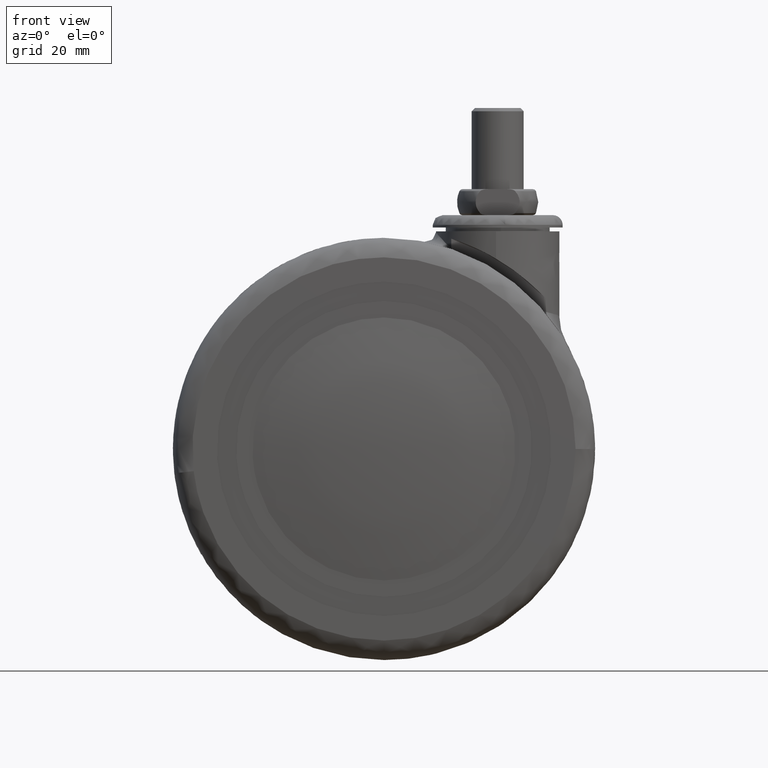
[diagram: clean part render]
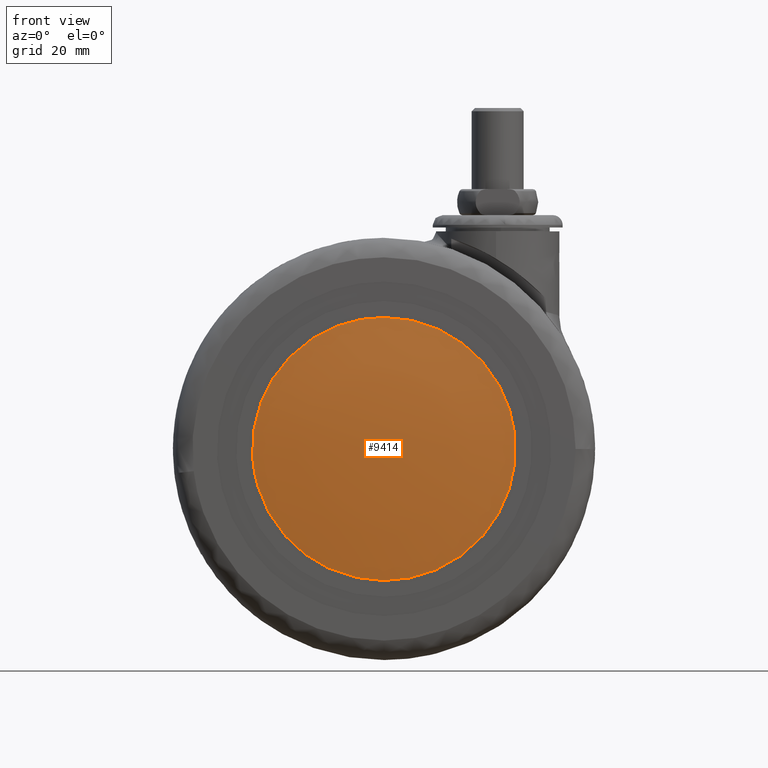
[diagram: same view with one face highlighted and labeled with its STEP entity id]
A machine part, front view. The second image highlights one B-rep face of the part: STEP entity #9414.
In plain terms, the highlighted face is a freeform B-spline surface patch.
Its self-contained STEP definition (entity closure, byte-faithful):
#7477=CARTESIAN_POINT('',(40.216882801902663,-31.800000000000001,4.780385587166419));
#7478=VERTEX_POINT('',#7477);
#7484=CARTESIAN_POINT('',(0.0,-31.800000000000001,-40.499996897085850));
#7485=VERTEX_POINT('',#7484);
#7486=CARTESIAN_POINT('',(40.216882801902663,-31.800000000000001,4.780385587166419));
#7487=CARTESIAN_POINT('',(40.499996897085857,-31.800000000000004,2.398576106136345));
#7488=CARTESIAN_POINT('',(40.499996897085850,-31.800000000000001,0.0));
#7489=CARTESIAN_POINT('',(40.499996897085850,-31.799999999999997,-40.499996897085850));
#7490=CARTESIAN_POINT('',(0.0,-31.800000000000001,-40.499996897085850));
#7498=(BOUNDED_CURVE()B_SPLINE_CURVE(2,(#7486,#7487,#7488,#7489,#7490),.UNSPECIFIED.,.F.,.U.)B_SPLINE_CURVE_WITH_KNOTS((3,2,3),(0.229562478139701,0.250000000000000,0.500000000000000),.UNSPECIFIED.)CURVE()GEOMETRIC_REPRESENTATION_ITEM()RATIONAL_B_SPLINE_CURVE((0.956026763251227,0.976055953751067,1.0,0.707106781186548,1.0))REPRESENTATION_ITEM(''));
#7499=EDGE_CURVE('',#7478,#7485,#7498,.T.);
#7501=CARTESIAN_POINT('',(-40.424458295922619,-31.800000000000001,-2.472432030216507));
#7502=VERTEX_POINT('',#7501);
#7503=CARTESIAN_POINT('',(0.0,-31.800000000000001,-40.499996897085850));
#7504=CARTESIAN_POINT('',(-38.098624546484359,-31.800000000000001,-40.499996897085843));
#7505=CARTESIAN_POINT('',(-40.424458295922619,-31.800000000000004,-2.472432030216506));
#7513=(BOUNDED_CURVE()B_SPLINE_CURVE(2,(#7503,#7504,#7505),.UNSPECIFIED.,.F.,.U.)B_SPLINE_CURVE_WITH_KNOTS((3,3),(0.500000000000000,0.739333105793952),.UNSPECIFIED.)CURVE()GEOMETRIC_REPRESENTATION_ITEM()RATIONAL_B_SPLINE_CURVE((1.0,0.719603825101555,0.976072349332622))REPRESENTATION_ITEM(''));
#7514=EDGE_CURVE('',#7485,#7502,#7513,.T.);
#7588=CARTESIAN_POINT('',(0.0,-31.800000000000001,40.499996897085850));
#7589=VERTEX_POINT('',#7588);
#7590=CARTESIAN_POINT('',(-40.424458295922619,-31.800000000000004,-2.472432030216506));
#7591=CARTESIAN_POINT('',(-40.499996897085850,-31.799999999999997,-1.237369955883160));
#7592=CARTESIAN_POINT('',(-40.499996897085850,-31.800000000000001,0.0));
#7593=CARTESIAN_POINT('',(-40.499996897085850,-31.799999999999997,40.499996897085850));
#7594=CARTESIAN_POINT('',(0.0,-31.800000000000001,40.499996897085850));
#7602=(BOUNDED_CURVE()B_SPLINE_CURVE(2,(#7590,#7591,#7592,#7593,#7594),.UNSPECIFIED.,.F.,.U.)B_SPLINE_CURVE_WITH_KNOTS((3,2,3),(0.739333105793952,0.750000000000000,1.0),.UNSPECIFIED.)CURVE()GEOMETRIC_REPRESENTATION_ITEM()RATIONAL_B_SPLINE_CURVE((0.976072349332622,0.987502956084992,1.0,0.707106781186548,1.0))REPRESENTATION_ITEM(''));
#7603=EDGE_CURVE('',#7502,#7589,#7602,.T.);
#7605=CARTESIAN_POINT('',(0.0,-31.800000000000001,40.499996897085850));
#7606=CARTESIAN_POINT('',(35.971066536225166,-31.799999999999997,40.499996897085850));
#7607=CARTESIAN_POINT('',(40.216882801902671,-31.800000000000004,4.780385587166419));
#7615=(BOUNDED_CURVE()B_SPLINE_CURVE(2,(#7605,#7606,#7607),.UNSPECIFIED.,.F.,.U.)B_SPLINE_CURVE_WITH_KNOTS((3,3),(0.0,0.229562478139701),.UNSPECIFIED.)CURVE()GEOMETRIC_REPRESENTATION_ITEM()RATIONAL_B_SPLINE_CURVE((1.0,0.731050827435480,0.956026763251227))REPRESENTATION_ITEM(''));
#7616=EDGE_CURVE('',#7589,#7478,#7615,.T.);
#9384=CARTESIAN_POINT('',(-44.131220986858523,-27.186561432156836,-44.132193948877031));
#9385=CARTESIAN_POINT('',(-22.241666048052064,-31.112768950086807,-44.484312821124092));
#9386=CARTESIAN_POINT('',(22.241792196694284,-31.112768950086807,-44.484312821124092));
#9387=CARTESIAN_POINT('',(44.131467324492220,-27.186517247820550,-44.132189986239133));
#9388=CARTESIAN_POINT('',(-44.483347746162892,-31.112943455738872,-22.242164235763987));
#9389=CARTESIAN_POINT('',(-22.420561549378760,-35.102309999999932,-22.421055856001878));
#9390=CARTESIAN_POINT('',(22.420688712667300,-35.102309999999932,-22.421055856001878));
#9391=CARTESIAN_POINT('',(44.483596017475541,-31.112898563488475,-22.242162222700692));
#9392=CARTESIAN_POINT('',(-44.483347746162892,-31.112943455738872,22.242163573407183));
#9393=CARTESIAN_POINT('',(-22.420561549378760,-35.102309999999932,22.421055188317801));
#9394=CARTESIAN_POINT('',(22.420688712667300,-35.102309999999932,22.421055188317801));
#9395=CARTESIAN_POINT('',(44.483596017475541,-31.112898563488475,22.242161560343948));
#9396=CARTESIAN_POINT('',(-44.131221007664671,-27.186561664155739,44.132192655456393));
#9397=CARTESIAN_POINT('',(-22.241666058621810,-31.112769185802591,44.484311517550935));
#9398=CARTESIAN_POINT('',(22.241792207264087,-31.112769185802591,44.484311517550935));
#9399=CARTESIAN_POINT('',(44.131467345298518,-27.186517479819440,44.132188692818644));
#9407=(BOUNDED_SURFACE()B_SPLINE_SURFACE(2,2,((#9384,#9388,#9392,#9396),(#9385,#9389,#9393,#9397),(#9386,#9390,#9394,#9398),(#9387,#9391,#9395,#9399)),.UNSPECIFIED.,.F.,.F.,.U.)B_SPLINE_SURFACE_WITH_KNOTS((3,1,3),(3,1,3),(72.448214783859257,116.047182420085310,159.646397337722790),(72.447253556442263,116.047182420085310,159.647109985351590),.UNSPECIFIED.)GEOMETRIC_REPRESENTATION_ITEM()RATIONAL_B_SPLINE_SURFACE(((1.016086165214199,1.008042905283032,1.008042905283032,1.016086164735154),(1.008043259931167,1.0,1.0,1.008043259452122),(1.008043259931167,1.0,1.0,1.008043259452122),(1.016086256448773,1.008042996517605,1.008042996517605,1.016086255969727)))REPRESENTATION_ITEM('')SURFACE());
#9408=ORIENTED_EDGE('',*,*,#7603,.F.);
#9409=ORIENTED_EDGE('',*,*,#7514,.F.);
#9410=ORIENTED_EDGE('',*,*,#7499,.F.);
#9411=ORIENTED_EDGE('',*,*,#7616,.F.);
#9412=EDGE_LOOP('',(#9408,#9409,#9410,#9411));
#9413=FACE_OUTER_BOUND('',#9412,.T.);
#9414=ADVANCED_FACE('',(#9413),#9407,.T.);